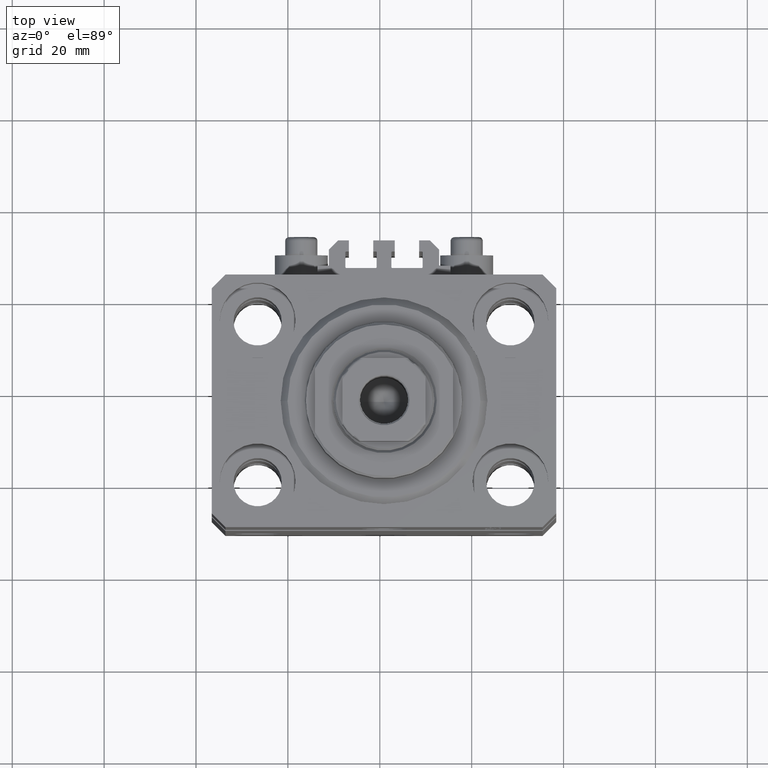
[diagram: clean part render]
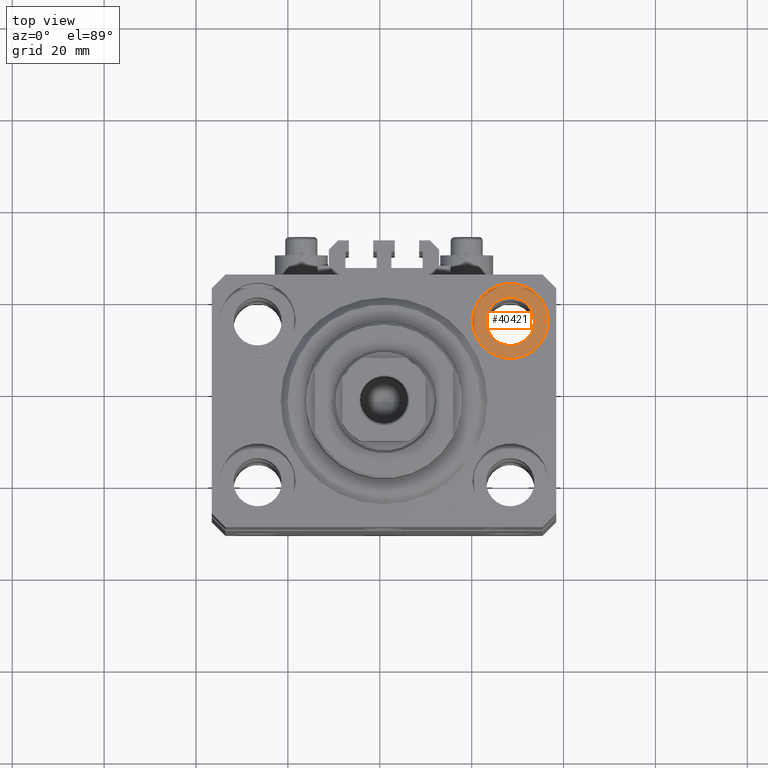
[diagram: same view with one face highlighted and labeled with its STEP entity id]
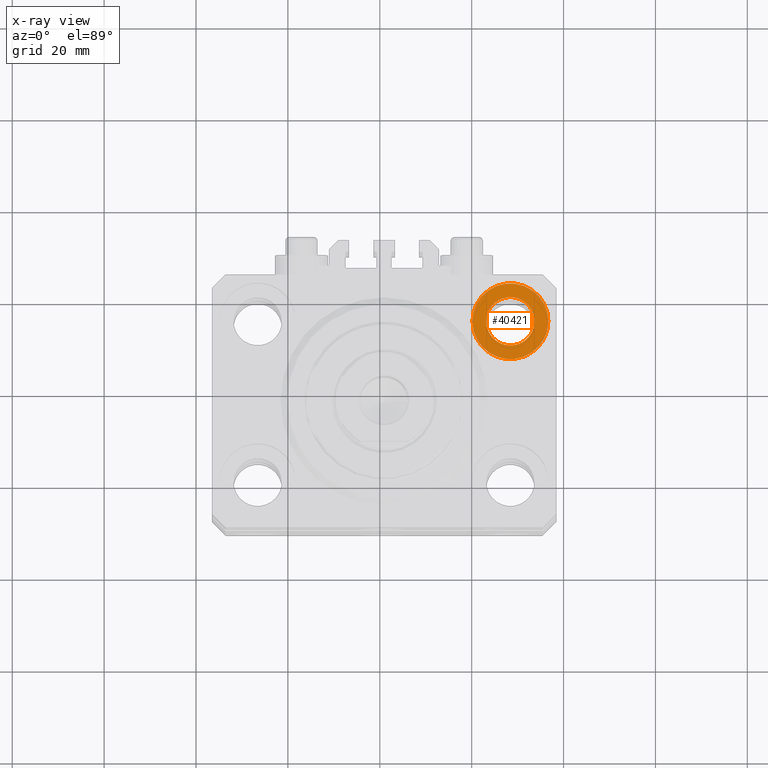
[diagram: x-ray of the same camera — body ghosted, the highlighted face saturated]
A machine part, top view. The second image highlights one B-rep face of the part: STEP entity #40421.
The next image is the same camera in x-ray: the body ghosted, the highlighted face saturated — about 0% of this face is hidden behind the body in this view.
In plain terms, the highlighted planar face has unit normal (0, 0, 1).
Its self-contained STEP definition (entity closure, byte-faithful):
#430 = CARTESIAN_POINT ( 'NONE',  ( 32.74999999999999289, 17.50000000000001066, -11.00000000000000000 ) ) ;
#875 = CIRCLE ( 'NONE', #16874, 8.249999999999992895 ) ;
#3015 = CARTESIAN_POINT ( 'NONE',  ( 19.25000000000000000, 17.50000000000001066, -11.00000000000000000 ) ) ;
#3247 = ORIENTED_EDGE ( 'NONE', *, *, #39140, .F. ) ;
#4614 = FACE_BOUND ( 'NONE', #39461, .T. ) ;
#7957 = FACE_OUTER_BOUND ( 'NONE', #20017, .T. ) ;
#8553 = ORIENTED_EDGE ( 'NONE', *, *, #10737, .T. ) ;
#8672 = DIRECTION ( 'NONE',  ( 1.000000000000000000, 0.000000000000000000, -0.000000000000000000 ) ) ;
#8794 = CARTESIAN_POINT ( 'NONE',  ( 27.49999999999999645, 17.50000000000001066, -11.00000000000000000 ) ) ;
#10737 = EDGE_CURVE ( 'NONE', #26881, #22244, #16661, .T. ) ;
#13057 = ORIENTED_EDGE ( 'NONE', *, *, #24672, .F. ) ;
#13210 = AXIS2_PLACEMENT_3D ( 'NONE', #26598, #22535, #44356 ) ;
#15958 = DIRECTION ( 'NONE',  ( 0.000000000000000000, 0.000000000000000000, 1.000000000000000000 ) ) ;
#16661 = CIRCLE ( 'NONE', #39612, 8.249999999999992895 ) ;
#16874 = AXIS2_PLACEMENT_3D ( 'NONE', #23492, #38136, #19917 ) ;
#17554 = CIRCLE ( 'NONE', #36569, 5.249999999999997335 ) ;
#17748 = DIRECTION ( 'NONE',  ( 0.000000000000000000, 0.000000000000000000, 1.000000000000000000 ) ) ;
#18953 = DIRECTION ( 'NONE',  ( 0.000000000000000000, 0.000000000000000000, 1.000000000000000000 ) ) ;
#19649 = PLANE ( 'NONE',  #43848 ) ;
#19917 = DIRECTION ( 'NONE',  ( 1.000000000000000000, 0.000000000000000000, 0.000000000000000000 ) ) ;
#20017 = EDGE_LOOP ( 'NONE', ( #28606, #8553 ) ) ;
#22244 = VERTEX_POINT ( 'NONE', #34848 ) ;
#22535 = DIRECTION ( 'NONE',  ( 0.000000000000000000, 0.000000000000000000, 1.000000000000000000 ) ) ;
#23492 = CARTESIAN_POINT ( 'NONE',  ( 27.49999999999999645, 17.50000000000001066, -11.00000000000000000 ) ) ;
#24672 = EDGE_CURVE ( 'NONE', #31368, #27418, #17554, .T. ) ;
#26598 = CARTESIAN_POINT ( 'NONE',  ( 27.49999999999999645, 17.50000000000001066, -11.00000000000000000 ) ) ;
#26881 = VERTEX_POINT ( 'NONE', #3015 ) ;
#27418 = VERTEX_POINT ( 'NONE', #430 ) ;
#28606 = ORIENTED_EDGE ( 'NONE', *, *, #30507, .T. ) ;
#29975 = CARTESIAN_POINT ( 'NONE',  ( 27.49999999999999645, 17.50000000000001066, -11.00000000000000000 ) ) ;
#30070 = CARTESIAN_POINT ( 'NONE',  ( 27.49999999999999645, 17.50000000000001066, -11.00000000000000000 ) ) ;
#30507 = EDGE_CURVE ( 'NONE', #22244, #26881, #875, .T. ) ;
#30571 = DIRECTION ( 'NONE',  ( 1.000000000000000000, 0.000000000000000000, 0.000000000000000000 ) ) ;
#31368 = VERTEX_POINT ( 'NONE', #37911 ) ;
#33871 = CIRCLE ( 'NONE', #13210, 5.249999999999997335 ) ;
#34382 = DIRECTION ( 'NONE',  ( 1.000000000000000000, 0.000000000000000000, 0.000000000000000000 ) ) ;
#34848 = CARTESIAN_POINT ( 'NONE',  ( 35.74999999999999289, 17.50000000000001066, -11.00000000000000000 ) ) ;
#36569 = AXIS2_PLACEMENT_3D ( 'NONE', #8794, #15958, #30571 ) ;
#37911 = CARTESIAN_POINT ( 'NONE',  ( 22.25000000000000000, 17.50000000000001066, -11.00000000000000000 ) ) ;
#38136 = DIRECTION ( 'NONE',  ( 0.000000000000000000, 0.000000000000000000, 1.000000000000000000 ) ) ;
#39140 = EDGE_CURVE ( 'NONE', #27418, #31368, #33871, .T. ) ;
#39461 = EDGE_LOOP ( 'NONE', ( #3247, #13057 ) ) ;
#39612 = AXIS2_PLACEMENT_3D ( 'NONE', #30070, #17748, #34382 ) ;
#40421 = ADVANCED_FACE ( 'NONE', ( #4614, #7957 ), #19649, .T. ) ;
#43848 = AXIS2_PLACEMENT_3D ( 'NONE', #29975, #18953, #8672 ) ;
#44356 = DIRECTION ( 'NONE',  ( 1.000000000000000000, 0.000000000000000000, 0.000000000000000000 ) ) ;